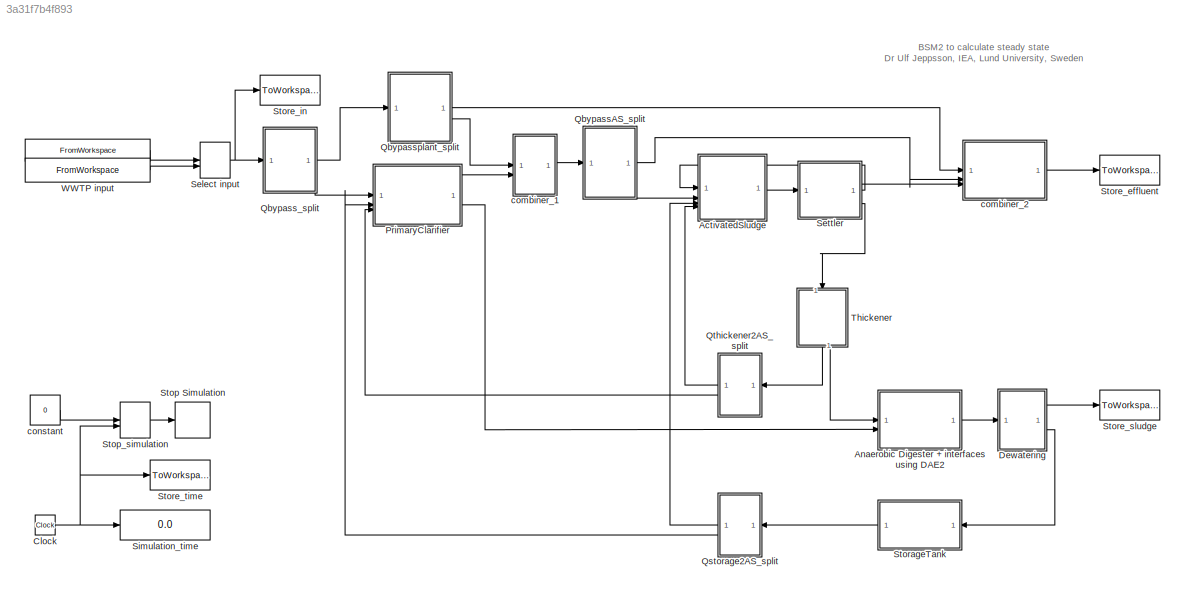
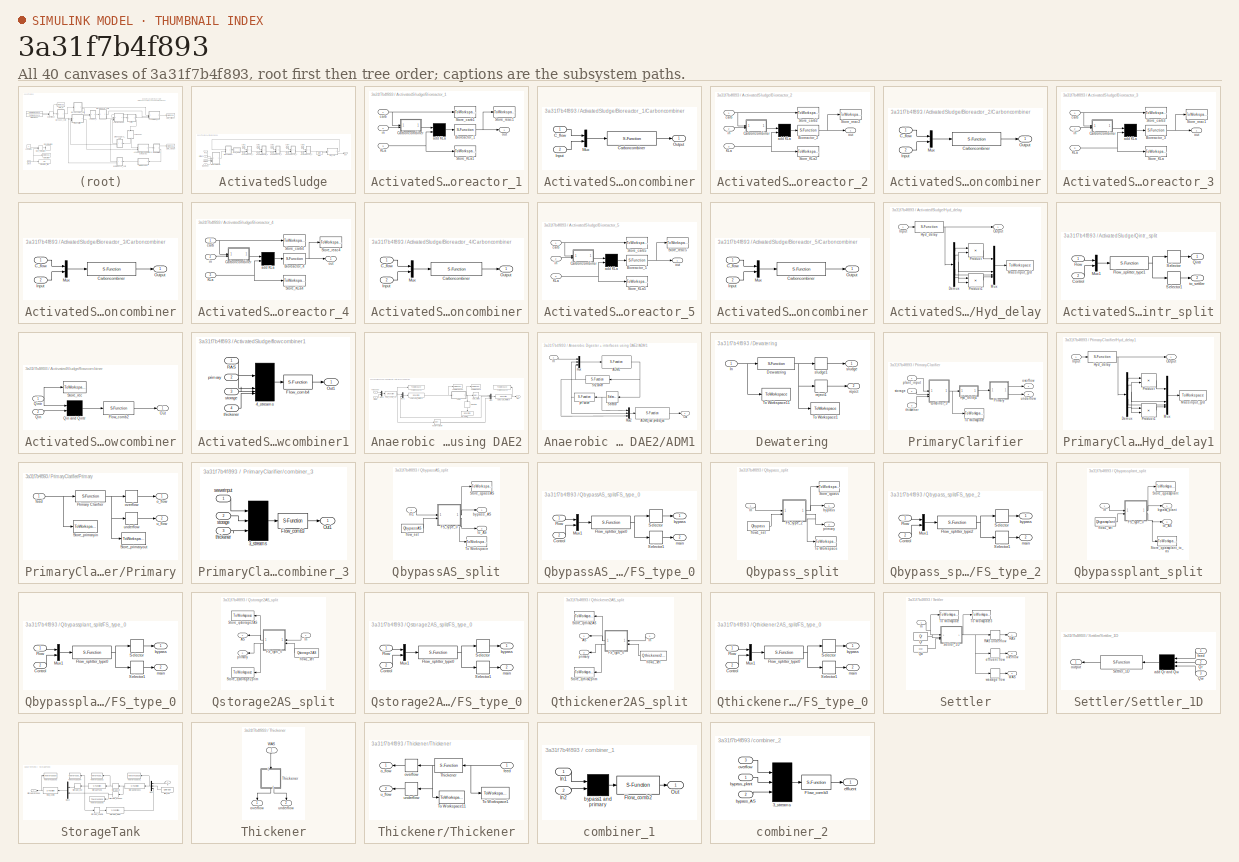
[diagram: thumbnail index - all 40 canvases of the model, root first then tree order]
MODEL slx_3a31f7b4f893
KIND model
CONFIG AbsTol = 1e-8
CONFIG EnableMultiTasking = off
CONFIG FixedStep = 0.01
CONFIG MaxStep = auto
CONFIG MinStep = auto
CONFIG RelTol = 1e-5
CONFIG SampleTimeConstraint = Unconstrained
CONFIG SolverName = ode15s
CONFIG StartTime = 0.0
CONFIG StopTime = 50
BLOCK [FromWorkspace]  
  OutputAfterFinalValue = Holding final value
  SampleTime = -1
  VariableName = CONSTINFLUENT_BSM2
  ZeroCross = off
BLOCK [Constant]  constant
  Value = 0
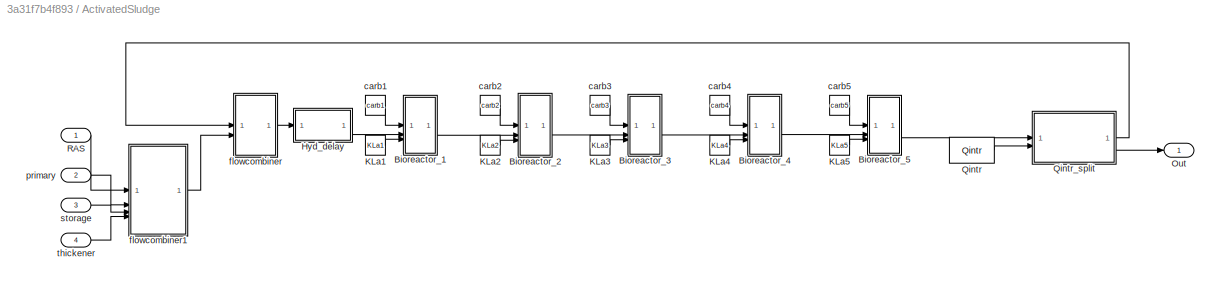
BLOCK [SubSystem] ActivatedSludge
BLOCK [SubSystem] ActivatedSludge/Bioreactor_1
BLOCK [S-Function] ActivatedSludge/Bioreactor_1/Bioreactor_1
  EnableBusSupport = off
  FunctionName = asm1_bsm2
  Parameters = XINIT1,PAR1,VOL1,SOSAT1,TEMPMODEL,ACTIVATE
  SFcnIsStateOwnerBlock = off
  SFunctionDeploymentMode = off
BLOCK [SubSystem] ActivatedSludge/Bioreactor_1/Carboncombiner
BLOCK [Inport] ActivatedSludge/Bioreactor_1/Carboncombiner/C_flow
BLOCK [S-Function] ActivatedSludge/Bioreactor_1/Carboncombiner/Carboncombiner
  EnableBusSupport = off
  FunctionName = carboncombiner_bsm2
  Parameters = CARBONSOURCECONC
  SFcnIsStateOwnerBlock = off
  SFunctionDeploymentMode = off
BLOCK [Inport] ActivatedSludge/Bioreactor_1/Carboncombiner/Input
  Port = 2
BLOCK [Mux] ActivatedSludge/Bioreactor_1/Carboncombiner/Mux
  DisplayOption = bar
  Inputs = 2
BLOCK [Outport] ActivatedSludge/Bioreactor_1/Carboncombiner/Output
BLOCK [Inport] ActivatedSludge/Bioreactor_1/KLa
  Port = 3
BLOCK [ToWorkspace] ActivatedSludge/Bioreactor_1/Store_KLa1
  MaxDataPoints = inf
  SampleTime = -1
  VariableName = kla1in
BLOCK [ToWorkspace] ActivatedSludge/Bioreactor_1/Store_carb1
  MaxDataPoints = inf
  SampleTime = -1
  VariableName = carbon1in
BLOCK [ToWorkspace] ActivatedSludge/Bioreactor_1/Store_reac1
  MaxDataPoints = inf
  SampleTime = -1
  VariableName = reac1
BLOCK [Mux] ActivatedSludge/Bioreactor_1/add KLa
  Inputs = 2
BLOCK [Inport] ActivatedSludge/Bioreactor_1/carb
BLOCK [Inport] ActivatedSludge/Bioreactor_1/in
  Port = 2
BLOCK [Outport] ActivatedSludge/Bioreactor_1/out
BLOCK [SubSystem] ActivatedSludge/Bioreactor_2
BLOCK [S-Function] ActivatedSludge/Bioreactor_2/Bioreactor_2
  EnableBusSupport = off
  FunctionName = asm1_bsm2
  Parameters = XINIT2,PAR2,VOL2,SOSAT2,TEMPMODEL,ACTIVATE
  SFcnIsStateOwnerBlock = off
  SFunctionDeploymentMode = off
BLOCK [SubSystem] ActivatedSludge/Bioreactor_2/Carboncombiner
BLOCK [Inport] ActivatedSludge/Bioreactor_2/Carboncombiner/C_flow
BLOCK [S-Function] ActivatedSludge/Bioreactor_2/Carboncombiner/Carboncombiner
  EnableBusSupport = off
  FunctionName = carboncombiner_bsm2
  Parameters = CARBONSOURCECONC
  SFcnIsStateOwnerBlock = off
  SFunctionDeploymentMode = off
BLOCK [Inport] ActivatedSludge/Bioreactor_2/Carboncombiner/Input
  Port = 2
BLOCK [Mux] ActivatedSludge/Bioreactor_2/Carboncombiner/Mux
  DisplayOption = bar
  Inputs = 2
BLOCK [Outport] ActivatedSludge/Bioreactor_2/Carboncombiner/Output
BLOCK [Inport] ActivatedSludge/Bioreactor_2/KLa
  Port = 3
BLOCK [ToWorkspace] ActivatedSludge/Bioreactor_2/Store_KLa2
  MaxDataPoints = inf
  SampleTime = -1
  VariableName = kla2in
BLOCK [ToWorkspace] ActivatedSludge/Bioreactor_2/Store_carb2
  MaxDataPoints = inf
  SampleTime = -1
  VariableName = carbon2in
BLOCK [ToWorkspace] ActivatedSludge/Bioreactor_2/Store_reac2
  MaxDataPoints = inf
  SampleTime = -1
  VariableName = reac2
BLOCK [Mux] ActivatedSludge/Bioreactor_2/add KLa
  Inputs = 2
BLOCK [Inport] ActivatedSludge/Bioreactor_2/carb
BLOCK [Inport] ActivatedSludge/Bioreactor_2/in
  Port = 2
BLOCK [Outport] ActivatedSludge/Bioreactor_2/out
BLOCK [SubSystem] ActivatedSludge/Bioreactor_3
BLOCK [S-Function] ActivatedSludge/Bioreactor_3/Bioreactor_3
  EnableBusSupport = off
  FunctionName = asm1_bsm2
  Parameters = XINIT3,PAR3,VOL3,SOSAT3,TEMPMODEL,ACTIVATE
  SFcnIsStateOwnerBlock = off
  SFunctionDeploymentMode = off
BLOCK [SubSystem] ActivatedSludge/Bioreactor_3/Carboncombiner
BLOCK [Inport] ActivatedSludge/Bioreactor_3/Carboncombiner/C_flow
BLOCK [S-Function] ActivatedSludge/Bioreactor_3/Carboncombiner/Carboncombiner
  EnableBusSupport = off
  FunctionName = carboncombiner_bsm2
  Parameters = CARBONSOURCECONC
  SFcnIsStateOwnerBlock = off
  SFunctionDeploymentMode = off
BLOCK [Inport] ActivatedSludge/Bioreactor_3/Carboncombiner/Input
  Port = 2
BLOCK [Mux] ActivatedSludge/Bioreactor_3/Carboncombiner/Mux
  DisplayOption = bar
  Inputs = 2
BLOCK [Outport] ActivatedSludge/Bioreactor_3/Carboncombiner/Output
BLOCK [Inport] ActivatedSludge/Bioreactor_3/KLa
  Port = 3
BLOCK [ToWorkspace] ActivatedSludge/Bioreactor_3/Store_KLa
  MaxDataPoints = inf
  SampleTime = -1
  VariableName = kla3in
BLOCK [ToWorkspace] ActivatedSludge/Bioreactor_3/Store_carb3
  MaxDataPoints = inf
  SampleTime = -1
  VariableName = carbon3in
BLOCK [ToWorkspace] ActivatedSludge/Bioreactor_3/Store_reac1
  MaxDataPoints = inf
  SampleTime = -1
  VariableName = reac3
BLOCK [Mux] ActivatedSludge/Bioreactor_3/add KLa
  Inputs = 2
BLOCK [Inport] ActivatedSludge/Bioreactor_3/carb
BLOCK [Inport] ActivatedSludge/Bioreactor_3/in
  Port = 2
BLOCK [Outport] ActivatedSludge/Bioreactor_3/out
BLOCK [SubSystem] ActivatedSludge/Bioreactor_4
BLOCK [S-Function] ActivatedSludge/Bioreactor_4/Bioreactor_4
  EnableBusSupport = off
  FunctionName = asm1_bsm2
  Parameters = XINIT4,PAR4,VOL4,SOSAT4,TEMPMODEL,ACTIVATE
  SFcnIsStateOwnerBlock = off
  SFunctionDeploymentMode = off
BLOCK [SubSystem] ActivatedSludge/Bioreactor_4/Carboncombiner
BLOCK [Inport] ActivatedSludge/Bioreactor_4/Carboncombiner/C_flow
BLOCK [S-Function] ActivatedSludge/Bioreactor_4/Carboncombiner/Carboncombiner
  EnableBusSupport = off
  FunctionName = carboncombiner_bsm2
  Parameters = CARBONSOURCECONC
  SFcnIsStateOwnerBlock = off
  SFunctionDeploymentMode = off
BLOCK [Inport] ActivatedSludge/Bioreactor_4/Carboncombiner/Input
  Port = 2
BLOCK [Mux] ActivatedSludge/Bioreactor_4/Carboncombiner/Mux
  DisplayOption = bar
  Inputs = 2
BLOCK [Outport] ActivatedSludge/Bioreactor_4/Carboncombiner/Output
BLOCK [Inport] ActivatedSludge/Bioreactor_4/KLa
  Port = 3
BLOCK [ToWorkspace] ActivatedSludge/Bioreactor_4/Store_KLa4
  MaxDataPoints = inf
  SampleTime = -1
  VariableName = kla4in
BLOCK [ToWorkspace] ActivatedSludge/Bioreactor_4/Store_carb4
  MaxDataPoints = inf
  SampleTime = -1
  VariableName = carbon4in
BLOCK [ToWorkspace] ActivatedSludge/Bioreactor_4/Store_reac4
  MaxDataPoints = inf
  SampleTime = -1
  VariableName = reac4
BLOCK [Mux] ActivatedSludge/Bioreactor_4/add KLa
  Inputs = 2
BLOCK [Inport] ActivatedSludge/Bioreactor_4/carb
BLOCK [Inport] ActivatedSludge/Bioreactor_4/in
  Port = 2
BLOCK [Outport] ActivatedSludge/Bioreactor_4/out
BLOCK [SubSystem] ActivatedSludge/Bioreactor_5
BLOCK [S-Function] ActivatedSludge/Bioreactor_5/Bioreactor_5
  EnableBusSupport = off
  FunctionName = asm1_bsm2
  Parameters = XINIT5,PAR5,VOL5,SOSAT5,TEMPMODEL,ACTIVATE
  SFcnIsStateOwnerBlock = off
  SFunctionDeploymentMode = off
BLOCK [SubSystem] ActivatedSludge/Bioreactor_5/Carboncombiner
BLOCK [Inport] ActivatedSludge/Bioreactor_5/Carboncombiner/C_flow
BLOCK [S-Function] ActivatedSludge/Bioreactor_5/Carboncombiner/Carboncombiner
  EnableBusSupport = off
  FunctionName = carboncombiner_bsm2
  Parameters = CARBONSOURCECONC
  SFcnIsStateOwnerBlock = off
  SFunctionDeploymentMode = off
BLOCK [Inport] ActivatedSludge/Bioreactor_5/Carboncombiner/Input
  Port = 2
BLOCK [Mux] ActivatedSludge/Bioreactor_5/Carboncombiner/Mux
  DisplayOption = bar
  Inputs = 2
BLOCK [Outport] ActivatedSludge/Bioreactor_5/Carboncombiner/Output
BLOCK [Inport] ActivatedSludge/Bioreactor_5/KLa
  Port = 3
BLOCK [ToWorkspace] ActivatedSludge/Bioreactor_5/Store_KLa5
  MaxDataPoints = inf
  SampleTime = -1
  VariableName = kla5in
BLOCK [ToWorkspace] ActivatedSludge/Bioreactor_5/Store_carb5
  MaxDataPoints = inf
  SampleTime = -1
  VariableName = carbon5in
BLOCK [ToWorkspace] ActivatedSludge/Bioreactor_5/Store_reac5
  MaxDataPoints = inf
  SampleTime = -1
  VariableName = reac5
BLOCK [Mux] ActivatedSludge/Bioreactor_5/add KLa
  Inputs = 2
BLOCK [Inport] ActivatedSludge/Bioreactor_5/carb
BLOCK [Inport] ActivatedSludge/Bioreactor_5/in
  Port = 2
BLOCK [Outport] ActivatedSludge/Bioreactor_5/out
BLOCK [SubSystem] ActivatedSludge/Hyd_delay
BLOCK [Demux] ActivatedSludge/Hyd_delay/Demux
  DisplayOption = none
  Outputs = [14,1,1,5]
BLOCK [S-Function] ActivatedSludge/Hyd_delay/Hyd_delay
  EnableBusSupport = off
  FunctionName = hyddelayv3_bsm2
  Parameters = XINITDELAY,PAR1,T
  SFcnIsStateOwnerBlock = off
  SFunctionDeploymentMode = off
BLOCK [Inport] ActivatedSludge/Hyd_delay/Input
BLOCK [ToWorkspace] ActivatedSludge/Hyd_delay/Massinput_g//d
  MaxDataPoints = inf
  SampleTime = -1
  VariableName = ASinput
BLOCK [Mux] ActivatedSludge/Hyd_delay/Mux
  DisplayOption = bar
BLOCK [Outport] ActivatedSludge/Hyd_delay/Output
BLOCK [Product] ActivatedSludge/Hyd_delay/Product
  OutDataTypeStr = Inherit: Same as first input
  SaturateOnIntegerOverflow = on
BLOCK [Product] ActivatedSludge/Hyd_delay/Product1
  OutDataTypeStr = Inherit: Same as first input
  SaturateOnIntegerOverflow = on
BLOCK [Constant] ActivatedSludge/KLa1
  Value = KLa1
BLOCK [Constant] ActivatedSludge/KLa2
  Value = KLa2
BLOCK [Constant] ActivatedSludge/KLa3
  Value = KLa3
BLOCK [Constant] ActivatedSludge/KLa4
  Value = KLa4
BLOCK [Constant] ActivatedSludge/KLa5
  Value = KLa5
BLOCK [Outport] ActivatedSludge/Out
BLOCK [Constant] ActivatedSludge/Qintr
  Value = Qintr
BLOCK [SubSystem] ActivatedSludge/Qintr_split
BLOCK [Inport] ActivatedSludge/Qintr_split/Control
  Port = 2
BLOCK [Inport] ActivatedSludge/Qintr_split/Flow
BLOCK [S-Function] ActivatedSludge/Qintr_split/Flow_splitter_type1
  EnableBusSupport = off
  FunctionName = flowsplitter_bsm2
  Parameters = Qintrtype
  SFcnIsStateOwnerBlock = off
  SFunctionDeploymentMode = off
BLOCK [Mux] ActivatedSludge/Qintr_split/Mux1
  DisplayOption = bar
  Inputs = 2
BLOCK [Outport] ActivatedSludge/Qintr_split/Qintr
BLOCK [Selector] ActivatedSludge/Qintr_split/Selector
  IndexOptions = Index vector (dialog)
  Indices = [1:21]
  InputPortWidth = 42
  OutputSizes = 1
BLOCK [Selector] ActivatedSludge/Qintr_split/Selector1
  IndexOptions = Index vector (dialog)
  Indices = [22:42]
  InputPortWidth = 42
  OutputSizes = 1
BLOCK [Outport] ActivatedSludge/Qintr_split/to_settler
  Port = 2
BLOCK [Inport] ActivatedSludge/RAS
BLOCK [Constant] ActivatedSludge/carb1
  NameLocation = top
  Value = carb1
BLOCK [Constant] ActivatedSludge/carb2
  NameLocation = top
  Value = carb2
BLOCK [Constant] ActivatedSludge/carb3
  NameLocation = top
  Value = carb3
BLOCK [Constant] ActivatedSludge/carb4
  NameLocation = top
  Value = carb4
BLOCK [Constant] ActivatedSludge/carb5
  NameLocation = top
  Value = carb5
BLOCK [SubSystem] ActivatedSludge/flowcombiner
BLOCK [S-Function] ActivatedSludge/flowcombiner/Flow_comb2
  EnableBusSupport = off
  FunctionName = combiner_bsm2
  SFcnIsStateOwnerBlock = off
  SFunctionDeploymentMode = off
BLOCK [Outport] ActivatedSludge/flowcombiner/Out
BLOCK [Inport] ActivatedSludge/flowcombiner/Qin
  Port = 2
BLOCK [Mux] ActivatedSludge/flowcombiner/Qin and Qintr
  Inputs = 2
BLOCK [Inport] ActivatedSludge/flowcombiner/Qintr
BLOCK [ToWorkspace] ActivatedSludge/flowcombiner/Store_rec
  MaxDataPoints = inf
  VariableName = rec
BLOCK [SubSystem] ActivatedSludge/flowcombiner1
BLOCK [Mux] ActivatedSludge/flowcombiner1/4_streams
BLOCK [S-Function] ActivatedSludge/flowcombiner1/Flow_comb4
  EnableBusSupport = off
  FunctionName = combiner4_bsm2
  SFcnIsStateOwnerBlock = off
  SFunctionDeploymentMode = off
BLOCK [Outport] ActivatedSludge/flowcombiner1/Out1
BLOCK [Inport] ActivatedSludge/flowcombiner1/RAS
BLOCK [Inport] ActivatedSludge/flowcombiner1/primary
  Port = 2
BLOCK [Inport] ActivatedSludge/flowcombiner1/storage
  Port = 3
BLOCK [Inport] ActivatedSludge/flowcombiner1/thickener
  Port = 4
BLOCK [Inport] ActivatedSludge/primary
  Port = 2
BLOCK [Inport] ActivatedSludge/storage
  Port = 3
BLOCK [Inport] ActivatedSludge/thickener
  Port = 4
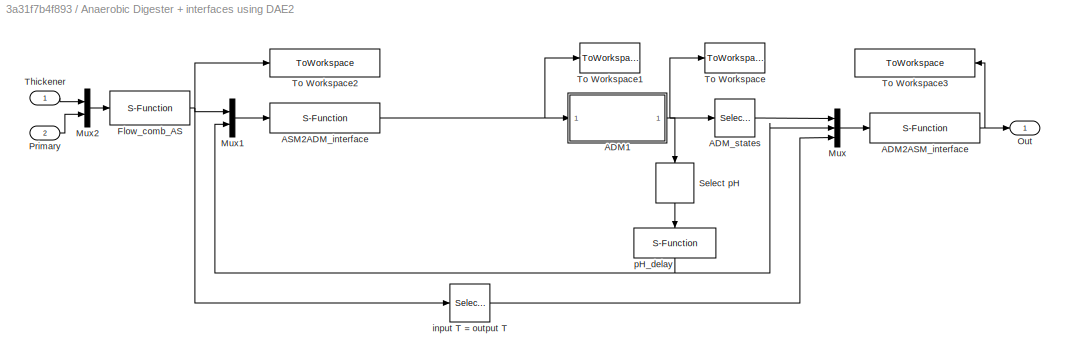
BLOCK [SubSystem] Anaerobic Digester + interfaces using DAE2
BLOCK [SubSystem] Anaerobic Digester + interfaces using DAE2/ADM1
BLOCK [S-Function] Anaerobic Digester + interfaces using DAE2/ADM1/ADM1
  EnableBusSupport = off
  FunctionName = adm1_DAE2_bsm2
  Parameters = DIGESTERINIT, DIGESTERPAR, DIM_D
  SFcnIsStateOwnerBlock = off
  SFunctionDeploymentMode = off
BLOCK [S-Function] Anaerobic Digester + interfaces using DAE2/ADM1/ADM1_last pH&h2_out
  EnableBusSupport = off
  FunctionName = DAE2_combiner_bsm2
  SFcnIsStateOwnerBlock = off
  SFunctionDeploymentMode = off
BLOCK [Inport] Anaerobic Digester + interfaces using DAE2/ADM1/In
BLOCK [Mux] Anaerobic Digester + interfaces using DAE2/ADM1/Mux2
  DisplayOption = bar
  Inputs = 3
BLOCK [Outport] Anaerobic Digester + interfaces using DAE2/ADM1/Out
BLOCK [Selector] Anaerobic Digester + interfaces using DAE2/ADM1/Selector
  IndexOptions = Index vector (dialog)
  Indices = [1:51]
  InputPortWidth = 52
  OutputSizes = 1
BLOCK [S-Function] Anaerobic Digester + interfaces using DAE2/ADM1/Sh2 solver
  EnableBusSupport = off
  FunctionName = Sh2solv_bsm2
  Parameters = SH2SOLVINIT, DIGESTERPAR, DIM_D
  SFcnIsStateOwnerBlock = off
  SFunctionDeploymentMode = off
BLOCK [Mux] Anaerobic Digester + interfaces using DAE2/ADM1/mux
  DisplayOption = bar
  Inputs = 3
BLOCK [S-Function] Anaerobic Digester + interfaces using DAE2/ADM1/pH solver
  EnableBusSupport = off
  FunctionName = pHsolv_bsm2
  Parameters = PHSOLVINIT, DIGESTERPAR
  SFcnIsStateOwnerBlock = off
  SFunctionDeploymentMode = off
BLOCK [S-Function] Anaerobic Digester + interfaces using DAE2/ADM2ASM_interface
  EnableBusSupport = off
  FunctionName = adm2asm_v3_bsm2
  Parameters = INTERFACEPAR
  SFcnIsStateOwnerBlock = off
  SFunctionDeploymentMode = off
BLOCK [Selector] Anaerobic Digester + interfaces using DAE2/ADM_states
  IndexOptions = Index vector (dialog)
  Indices = [1:33]
  InputPortWidth = 51
  OutputSizes = 1
BLOCK [S-Function] Anaerobic Digester + interfaces using DAE2/ASM2ADM_interface
  EnableBusSupport = off
  FunctionName = asm2adm_v3_bsm2
  Parameters = INTERFACEPAR
  SFcnIsStateOwnerBlock = off
  SFunctionDeploymentMode = off
BLOCK [S-Function] Anaerobic Digester + interfaces using DAE2/Flow_comb_AS
  EnableBusSupport = off
  FunctionName = combiner_bsm2
  SFcnIsStateOwnerBlock = off
  SFunctionDeploymentMode = off
BLOCK [Mux] Anaerobic Digester + interfaces using DAE2/Mux
  DisplayOption = bar
  Inputs = 3
BLOCK [Mux] Anaerobic Digester + interfaces using DAE2/Mux1
  DisplayOption = bar
  Inputs = 2
BLOCK [Mux] Anaerobic Digester + interfaces using DAE2/Mux2
  DisplayOption = bar
  Inputs = 2
BLOCK [Outport] Anaerobic Digester + interfaces using DAE2/Out
BLOCK [Inport] Anaerobic Digester + interfaces using DAE2/Primary
  Port = 2
BLOCK [Selector] Anaerobic Digester + interfaces using DAE2/Select pH
  IndexOptions = Index vector (dialog)
  Indices = [34]
  InputPortWidth = 51
  NameLocation = left
  OutputSizes = 1
BLOCK [Inport] Anaerobic Digester + interfaces using DAE2/Thickener
BLOCK [ToWorkspace] Anaerobic Digester + interfaces using DAE2/To Workspace
  MaxDataPoints = inf
  VariableName = digesterout
BLOCK [ToWorkspace] Anaerobic Digester + interfaces using DAE2/To Workspace1
  MaxDataPoints = inf
  VariableName = digesterin
BLOCK [ToWorkspace] Anaerobic Digester + interfaces using DAE2/To Workspace2
  MaxDataPoints = inf
  VariableName = digesterinpreinterface
BLOCK [ToWorkspace] Anaerobic Digester + interfaces using DAE2/To Workspace3
  MaxDataPoints = inf
  VariableName = digesteroutpostinterface
BLOCK [Selector] Anaerobic Digester + interfaces using DAE2/input T = output T
  IndexOptions = Index vector (dialog)
  Indices = [16]
  InputPortWidth = 21
  OutputSizes = 1
BLOCK [S-Function] Anaerobic Digester + interfaces using DAE2/pH_delay
  EnableBusSupport = off
  FunctionName = pHdelay_bsm2
  NameLocation = left
  Parameters = PHINIT, PHTIMECONST
  SFcnIsStateOwnerBlock = off
  SFunctionDeploymentMode = off
BLOCK [Clock] Clock
BLOCK [SubSystem] Dewatering
BLOCK [S-Function] Dewatering/Dewatering
  EnableBusSupport = off
  FunctionName = dewatering_bsm2
  Parameters = DEWATERINGPAR
  SFcnIsStateOwnerBlock = off
  SFunctionDeploymentMode = off
BLOCK [Inport] Dewatering/In
BLOCK [ToWorkspace] Dewatering/To Workspace1
  MaxDataPoints = inf
  VariableName = dewateringout
BLOCK [ToWorkspace] Dewatering/To Workspace11
  MaxDataPoints = inf
  VariableName = dewateringin
BLOCK [Outport] Dewatering/reject
  Port = 2
BLOCK [Selector] Dewatering/reject1
  IndexOptions = Index vector (dialog)
  Indices = [22:42]
  InputPortWidth = 42
  OutputSizes = 1
BLOCK [Outport] Dewatering/sludge
BLOCK [Selector] Dewatering/sludge1
  IndexOptions = Index vector (dialog)
  Indices = [1:21]
  InputPortWidth = 42
  OutputSizes = 1
BLOCK [SubSystem] PrimaryClarifier
BLOCK [SubSystem] PrimaryClarifier/Hyd_delay1
BLOCK [Demux] PrimaryClarifier/Hyd_delay1/Demux
  DisplayOption = none
  Outputs = [14,1,1,5]
BLOCK [S-Function] PrimaryClarifier/Hyd_delay1/Hyd_delay
  EnableBusSupport = off
  FunctionName = hyddelayv3_bsm2
  Parameters = XINITDELAYPRIMARY,PAR1,T
  SFcnIsStateOwnerBlock = off
  SFunctionDeploymentMode = off
BLOCK [Inport] PrimaryClarifier/Hyd_delay1/Input
BLOCK [ToWorkspace] PrimaryClarifier/Hyd_delay1/Massinput_g//d
  MaxDataPoints = inf
  SampleTime = -1
  VariableName = primaryinput
BLOCK [Mux] PrimaryClarifier/Hyd_delay1/Mux
  DisplayOption = bar
BLOCK [Outport] PrimaryClarifier/Hyd_delay1/Output
BLOCK [Product] PrimaryClarifier/Hyd_delay1/Product
  OutDataTypeStr = Inherit: Same as first input
  SaturateOnIntegerOverflow = on
BLOCK [Product] PrimaryClarifier/Hyd_delay1/Product1
  OutDataTypeStr = Inherit: Same as first input
  SaturateOnIntegerOverflow = on
BLOCK [SubSystem] PrimaryClarifier/Primary
BLOCK [S-Function] PrimaryClarifier/Primary/Primary Clarifier
  EnableBusSupport = off
  FunctionName = primclar_bsm2
  Parameters = XINIT_P,XVEKTOR_P,PAR_P,VOL_P,PAR1,TEMPMODEL
  SFcnIsStateOwnerBlock = off
  SFunctionDeploymentMode = off
BLOCK [ToWorkspace] PrimaryClarifier/Primary/Store_primaryin
  MaxDataPoints = inf
  VariableName = primaryin
BLOCK [ToWorkspace] PrimaryClarifier/Primary/Store_primaryout
  MaxDataPoints = inf
  VariableName = primaryout
BLOCK [Inport] PrimaryClarifier/Primary/feed
BLOCK [Outport] PrimaryClarifier/Primary/o_flow
BLOCK [Selector] PrimaryClarifier/Primary/overflow
  IndexOptions = Index vector (dialog)
  Indices = [1:21]
  InputPortWidth = 63
  NameLocation = top
  OutputSizes = 1
BLOCK [Outport] PrimaryClarifier/Primary/u_flow
  Port = 2
BLOCK [Selector] PrimaryClarifier/Primary/underflow
  IndexOptions = Index vector (dialog)
  Indices = [22:42]
  InputPortWidth = 63
  OutputSizes = 1
BLOCK [ToWorkspace] PrimaryClarifier/To Workspace
  MaxDataPoints = inf
  VariableName = prim_in
BLOCK [SubSystem] PrimaryClarifier/combiner_3
BLOCK [Mux] PrimaryClarifier/combiner_3/3_streams
  Inputs = 3
BLOCK [S-Function] PrimaryClarifier/combiner_3/Flow_comb3
  EnableBusSupport = off
  FunctionName = combiner3_bsm2
  SFcnIsStateOwnerBlock = off
  SFunctionDeploymentMode = off
BLOCK [Outport] PrimaryClarifier/combiner_3/Out1
BLOCK [Inport] PrimaryClarifier/combiner_3/sewerinput
BLOCK [Inport] PrimaryClarifier/combiner_3/storage
  Port = 2
BLOCK [Inport] PrimaryClarifier/combiner_3/thickener
  Port = 3
BLOCK [Outport] PrimaryClarifier/overflow
  NameLocation = top
BLOCK [Inport] PrimaryClarifier/plant_input
BLOCK [Inport] PrimaryClarifier/storage
  Port = 2
BLOCK [Inport] PrimaryClarifier/thickener
  Port = 3
BLOCK [Outport] PrimaryClarifier/underflow
  Port = 2
BLOCK [SubSystem] QbypassAS_split
BLOCK [SubSystem] QbypassAS_split/FS_type_0
BLOCK [Inport] QbypassAS_split/FS_type_0/Control
  Port = 2
BLOCK [Inport] QbypassAS_split/FS_type_0/Flow
BLOCK [S-Function] QbypassAS_split/FS_type_0/Flow_splitter_type0
  EnableBusSupport = off
  FunctionName = flowsplitter_bsm2
  Parameters = QbypassAStype
  SFcnIsStateOwnerBlock = off
  SFunctionDeploymentMode = off
BLOCK [Mux] QbypassAS_split/FS_type_0/Mux1
  DisplayOption = bar
  Inputs = 2
BLOCK [Selector] QbypassAS_split/FS_type_0/Selector
  IndexOptions = Index vector (dialog)
  Indices = [1:21]
  InputPortWidth = 42
  OutputSizes = 1
BLOCK [Selector] QbypassAS_split/FS_type_0/Selector1
  IndexOptions = Index vector (dialog)
  Indices = [22:42]
  InputPortWidth = 42
  OutputSizes = 1
BLOCK [Outport] QbypassAS_split/FS_type_0/bypass
BLOCK [Outport] QbypassAS_split/FS_type_0/main
  Port = 2
BLOCK [Inport] QbypassAS_split/In1
BLOCK [ToWorkspace] QbypassAS_split/Store_qpassAS
  MaxDataPoints = inf
  VariableName = qpassAS
BLOCK [ToWorkspace] QbypassAS_split/To Workspace
  MaxDataPoints = inf
  VariableName = to_as
BLOCK [Outport] QbypassAS_split/bypass_AS
BLOCK [Constant] QbypassAS_split/flow_set
  Value = QbypassAS
BLOCK [Outport] QbypassAS_split/to_AS
  Port = 2
BLOCK [SubSystem] Qbypass_split
BLOCK [SubSystem] Qbypass_split/FS_type_2
BLOCK [Inport] Qbypass_split/FS_type_2/Control
  Port = 2
BLOCK [Inport] Qbypass_split/FS_type_2/Flow
BLOCK [S-Function] Qbypass_split/FS_type_2/Flow_splitter_type2
  EnableBusSupport = off
  FunctionName = flowsplitter_bsm2
  Parameters = Qbypasstype
  SFcnIsStateOwnerBlock = off
  SFunctionDeploymentMode = off
BLOCK [Mux] Qbypass_split/FS_type_2/Mux1
  DisplayOption = bar
  Inputs = 2
BLOCK [Selector] Qbypass_split/FS_type_2/Selector
  IndexOptions = Index vector (dialog)
  Indices = [1:21]
  InputPortWidth = 42
  OutputSizes = 1
BLOCK [Selector] Qbypass_split/FS_type_2/Selector1
  IndexOptions = Index vector (dialog)
  Indices = [22:42]
  InputPortWidth = 42
  OutputSizes = 1
BLOCK [Outport] Qbypass_split/FS_type_2/bypass
BLOCK [Outport] Qbypass_split/FS_type_2/main
  Port = 2
BLOCK [Inport] Qbypass_split/In
BLOCK [ToWorkspace] Qbypass_split/Store_qpass
  MaxDataPoints = inf
  VariableName = qpass
BLOCK [ToWorkspace] Qbypass_split/To Workspace
  MaxDataPoints = inf
  VariableName = to_primary
BLOCK [Outport] Qbypass_split/bypass
BLOCK [Constant] Qbypass_split/flow1_set
  Value = Qbypass
BLOCK [Outport] Qbypass_split/primary
  Port = 2
BLOCK [SubSystem] Qbypassplant_split
BLOCK [SubSystem] Qbypassplant_split/FS_type_0
BLOCK [Inport] Qbypassplant_split/FS_type_0/Control
  Port = 2
BLOCK [Inport] Qbypassplant_split/FS_type_0/Flow
BLOCK [S-Function] Qbypassplant_split/FS_type_0/Flow_splitter_type0
  EnableBusSupport = off
  FunctionName = flowsplitter_bsm2
  Parameters = Qbypassplanttype
  SFcnIsStateOwnerBlock = off
  SFunctionDeploymentMode = off
BLOCK [Mux] Qbypassplant_split/FS_type_0/Mux1
  DisplayOption = bar
  Inputs = 2
BLOCK [Selector] Qbypassplant_split/FS_type_0/Selector
  IndexOptions = Index vector (dialog)
  Indices = [1:21]
  InputPortWidth = 42
  OutputSizes = 1
BLOCK [Selector] Qbypassplant_split/FS_type_0/Selector1
  IndexOptions = Index vector (dialog)
  Indices = [22:42]
  InputPortWidth = 42
  OutputSizes = 1
BLOCK [Outport] Qbypassplant_split/FS_type_0/bypass
BLOCK [Outport] Qbypassplant_split/FS_type_0/main
  Port = 2
BLOCK [Inport] Qbypassplant_split/In
BLOCK [ToWorkspace] Qbypassplant_split/Store_qpassplant
  MaxDataPoints = inf
  VariableName = qpassplant
BLOCK [ToWorkspace] Qbypassplant_split/Store_qpassplant_to_as
  MaxDataPoints = inf
  VariableName = qpassplant_to_as
BLOCK [Outport] Qbypassplant_split/bypass_plant
BLOCK [Constant] Qbypassplant_split/flow1_set
  Value = Qbypassplant
BLOCK [Outport] Qbypassplant_split/to_AS
  Port = 2
BLOCK [SubSystem] Qstorage2AS_split
BLOCK [Outport] Qstorage2AS_split/AS
BLOCK [SubSystem] Qstorage2AS_split/FS_type_0
BLOCK [Inport] Qstorage2AS_split/FS_type_0/Control
  Port = 2
BLOCK [Inport] Qstorage2AS_split/FS_type_0/Flow
BLOCK [S-Function] Qstorage2AS_split/FS_type_0/Flow_splitter_type0
  EnableBusSupport = off
  FunctionName = flowsplitter_bsm2
  Parameters = Qstorage2AStype
  SFcnIsStateOwnerBlock = off
  SFunctionDeploymentMode = off
BLOCK [Mux] Qstorage2AS_split/FS_type_0/Mux1
  DisplayOption = bar
  Inputs = 2
BLOCK [Selector] Qstorage2AS_split/FS_type_0/Selector
  IndexOptions = Index vector (dialog)
  Indices = [1:21]
  InputPortWidth = 42
  OutputSizes = 1
BLOCK [Selector] Qstorage2AS_split/FS_type_0/Selector1
  IndexOptions = Index vector (dialog)
  Indices = [22:42]
  InputPortWidth = 42
  OutputSizes = 1
BLOCK [Outport] Qstorage2AS_split/FS_type_0/bypass
BLOCK [Outport] Qstorage2AS_split/FS_type_0/main
  Port = 2
BLOCK [Inport] Qstorage2AS_split/In
BLOCK [ToWorkspace] Qstorage2AS_split/Store_qstorage2AS
  MaxDataPoints = inf
  VariableName = qstorage2AS
BLOCK [ToWorkspace] Qstorage2AS_split/Store_qstorage2prim
  MaxDataPoints = inf
  VariableName = qstorage2prim
BLOCK [Constant] Qstorage2AS_split/flow1_set
  Value = Qstorage2AS
BLOCK [Outport] Qstorage2AS_split/primary
  Port = 2
BLOCK [SubSystem] Qthickener2AS_split
BLOCK [Outport] Qthickener2AS_split/AS
BLOCK [SubSystem] Qthickener2AS_split/FS_type_0
BLOCK [Inport] Qthickener2AS_split/FS_type_0/Control
  Port = 2
BLOCK [Inport] Qthickener2AS_split/FS_type_0/Flow
BLOCK [S-Function] Qthickener2AS_split/FS_type_0/Flow_splitter_type0
  EnableBusSupport = off
  FunctionName = flowsplitter_bsm2
  Parameters = Qthickener2AStype
  SFcnIsStateOwnerBlock = off
  SFunctionDeploymentMode = off
BLOCK [Mux] Qthickener2AS_split/FS_type_0/Mux1
  DisplayOption = bar
  Inputs = 2
BLOCK [Selector] Qthickener2AS_split/FS_type_0/Selector
  IndexOptions = Index vector (dialog)
  Indices = [1:21]
  InputPortWidth = 42
  OutputSizes = 1
BLOCK [Selector] Qthickener2AS_split/FS_type_0/Selector1
  IndexOptions = Index vector (dialog)
  Indices = [22:42]
  InputPortWidth = 42
  OutputSizes = 1
BLOCK [Outport] Qthickener2AS_split/FS_type_0/bypass
BLOCK [Outport] Qthickener2AS_split/FS_type_0/main
  Port = 2
BLOCK [Inport] Qthickener2AS_split/In
BLOCK [ToWorkspace] Qthickener2AS_split/Store_qthick2AS
  MaxDataPoints = inf
  VariableName = qthick2AS
BLOCK [ToWorkspace] Qthickener2AS_split/Store_qthick2prim
  MaxDataPoints = inf
  VariableName = qthick2prim
BLOCK [Constant] Qthickener2AS_split/flow1_set
  Value = Qthickener2AS
BLOCK [Outport] Qthickener2AS_split/primary
  Port = 2
BLOCK [ManualSwitch] Select input
  CurrentSetting = 0
BLOCK [SubSystem] Settler
BLOCK [Inport] Settler/In
BLOCK [Constant] Settler/Qr
  Value = Qr
BLOCK [Constant] Settler/Qw
  Value = Qw
BLOCK [Outport] Settler/RAS
BLOCK [Selector] Settler/RAS underflow
  IndexOptions = Index vector (dialog)
  Indices = [1:21]
  InputPortWidth = 166
  OutputSizes = 1
BLOCK [SubSystem] Settler/Settler_1D
BLOCK [Inport] Settler/Settler_1D/Qr
  Port = 2
BLOCK [Inport] Settler/Settler_1D/Qw
  Port = 3
BLOCK [S-Function] Settler/Settler_1D/Settler_1D
  EnableBusSupport = off
  FunctionName = settler1dv5_bsm2
  Parameters = SETTLERINIT,SETTLERPAR,DIM,LAYER,MODELTYPE,TEMPMODEL,ACTIVATE
  SFcnIsStateOwnerBlock = off
  SFunctionDeploymentMode = off
BLOCK [Mux] Settler/Settler_1D/add Qr and Qw
  Inputs = 3
BLOCK [Inport] Settler/Settler_1D/feed
BLOCK [Outport] Settler/Settler_1D/output
BLOCK [ToWorkspace] Settler/To Workspace
  MaxDataPoints = inf
  VariableName = feed
BLOCK [ToWorkspace] Settler/To Workspace3
  MaxDataPoints = inf
  VariableName = settler
BLOCK [Outport] Settler/WAS
  Port = 3
BLOCK [Selector] Settler/effluent flow
  IndexOptions = Index vector (dialog)
  Indices = [23:43]
  InputPortWidth = 166
  OutputSizes = 1
BLOCK [Outport] Settler/overflow
  Port = 2
BLOCK [Selector] Settler/wastage flow
  IndexOptions = Index vector (dialog)
  Indices = [1:14,22,16:21]
  InputPortWidth = 166
  OutputSizes = 1
BLOCK [Display] Simulation_time
  Decimation = 1
BLOCK [Stop] Stop Simulation
BLOCK [ManualSwitch] Stop_simulation
BLOCK [SubSystem] StorageTank
BLOCK [S-Function] StorageTank/Flow_comb
  EnableBusSupport = off
  FunctionName = combiner_bsm2
  SFcnIsStateOwnerBlock = off
  SFunctionDeploymentMode = off
BLOCK [Inport] StorageTank/In
BLOCK [Mux] StorageTank/Mux1
  DisplayOption = bar
  Inputs = 3
BLOCK [Mux] StorageTank/Mux2
  DisplayOption = bar
  Inputs = 2
BLOCK [Outport] StorageTank/Storage+bypass
BLOCK [S-Function] StorageTank/StorageBypass
  EnableBusSupport = off
  FunctionName = storagebypass_bsm2
  Parameters = VOL_S
  SFcnIsStateOwnerBlock = off
  SFunctionDeploymentMode = off
BLOCK [S-Function] StorageTank/StorageTank
  EnableBusSupport = off
  FunctionName = storage_bsm2
  Parameters = XINITSTORAGE,VOL_S,TEMPMODEL,ACTIVATE
  SFcnIsStateOwnerBlock = off
  SFunctionDeploymentMode = off
BLOCK [Selector] StorageTank/Storage_bypass
  IndexOptions = Index vector (dialog)
  Indices = [23:43]
  InputPortWidth = 43
  OutputSizes = 1
BLOCK [Selector] StorageTank/Storage_in
  IndexOptions = Index vector (dialog)
  Indices = [1:22]
  InputPortWidth = 43
  OutputSizes = 1
BLOCK [Selector] StorageTank/Storage_out
  IndexOptions = Index vector (dialog)
  Indices = [1:21]
  InputPortWidth = 22
  OutputSizes = 1
BLOCK [Selector] StorageTank/Storage_volume
  IndexOptions = Index vector (dialog)
  Indices = [22]
  InputPortWidth = 22
  OutputSizes = 1
BLOCK [ToWorkspace] StorageTank/To Workspace1
  MaxDataPoints = inf
  VariableName = storagetotin
BLOCK [ToWorkspace] StorageTank/To Workspace2
  MaxDataPoints = inf
  VariableName = storagein
BLOCK [ToWorkspace] StorageTank/To Workspace3
  MaxDataPoints = inf
  VariableName = storagetotout
BLOCK [ToWorkspace] StorageTank/To Workspace4
  MaxDataPoints = inf
  VariableName = storageout
BLOCK [ToWorkspace] StorageTank/To Workspace5
  MaxDataPoints = inf
  VariableName = storagebypass
BLOCK [Constant] StorageTank/flow_set
  Value = Qstorage
BLOCK [S-Function] StorageTank/storage_delay
  EnableBusSupport = off
  FunctionName = storagedelay_bsm2
  Parameters = VOL_INIT_S,TIMEDELAY_S
  SFcnIsStateOwnerBlock = off
  SFunctionDeploymentMode = off
BLOCK [ToWorkspace] Store_effluent
  MaxDataPoints = inf
  VariableName = effluent
BLOCK [ToWorkspace] Store_in
  MaxDataPoints = inf
  VariableName = in
BLOCK [ToWorkspace] Store_sludge
  MaxDataPoints = inf
  VariableName = sludge
BLOCK [ToWorkspace] Store_time
  MaxDataPoints = inf
  VariableName = time
BLOCK [SubSystem] Thickener
  NameLocation = right
BLOCK [SubSystem] Thickener/Thickener
  NameLocation = left
BLOCK [S-Function] Thickener/Thickener/Thickener
  EnableBusSupport = off
  FunctionName = thickener_bsm2
  Parameters = THICKENERPAR
  SFcnIsStateOwnerBlock = off
  SFunctionDeploymentMode = off
BLOCK [ToWorkspace] Thickener/Thickener/To Workspace1
  MaxDataPoints = inf
  VariableName = thickenerin
BLOCK [ToWorkspace] Thickener/Thickener/To Workspace11
  MaxDataPoints = inf
  VariableName = thickenerout
BLOCK [Inport] Thickener/Thickener/feed
BLOCK [Outport] Thickener/Thickener/o_flow
BLOCK [Selector] Thickener/Thickener/overflow
  IndexOptions = Index vector (dialog)
  Indices = [22:42]
  InputPortWidth = 42
  NameLocation = top
  OutputSizes = 1
BLOCK [Outport] Thickener/Thickener/u_flow
  Port = 2
BLOCK [Selector] Thickener/Thickener/underflow
  IndexOptions = Index vector (dialog)
  Indices = [1:21]
  InputPortWidth = 42
  OutputSizes = 1
BLOCK [Inport] Thickener/WAS
  NameLocation = right
BLOCK [Outport] Thickener/overflow
  NameLocation = left
BLOCK [Outport] Thickener/underflow
  NameLocation = right
  Port = 2
BLOCK [FromWorkspace] WWTP input
  Interpolate = off
  OutputAfterFinalValue = Holding final value
  SampleTime = -1
  VariableName = DYNINFLUENT_BSM2
  ZeroCross = off
BLOCK [SubSystem] combiner_1
BLOCK [S-Function] combiner_1/Flow_comb2
  EnableBusSupport = off
  FunctionName = combiner_bsm2
  SFcnIsStateOwnerBlock = off
  SFunctionDeploymentMode = off
BLOCK [Inport] combiner_1/In1
BLOCK [Inport] combiner_1/In2
  Port = 2
BLOCK [Outport] combiner_1/Out
BLOCK [Mux] combiner_1/bypass1 and primary
  Inputs = 2
BLOCK [SubSystem] combiner_2
BLOCK [Mux] combiner_2/3_streams
  Inputs = 3
BLOCK [S-Function] combiner_2/Flow_comb3
  EnableBusSupport = off
  FunctionName = combiner3_bsm2
  SFcnIsStateOwnerBlock = off
  SFunctionDeploymentMode = off
BLOCK [Inport] combiner_2/bypass_AS
  Port = 2
BLOCK [Inport] combiner_2/bypass_plant
BLOCK [Outport] combiner_2/effluent
BLOCK [Inport] combiner_2/overflow
  Port = 3
ANNOTATION (root): BSM2 to calculate steady state Dr Ulf Jeppsson, IEA, Lund University, Sweden
LINE  :1 -> Select input:1
LINE  constant:1 -> Stop_simulation:1
NET ActivatedSludge/Bioreactor_1/Bioreactor_1:1 -> ActivatedSludge/Bioreactor_1/Store_reac1:1, ActivatedSludge/Bioreactor_1/out:1
LINE ActivatedSludge/Bioreactor_1/Carboncombiner/C_flow:1 -> ActivatedSludge/Bioreactor_1/Carboncombiner/Mux:1
LINE ActivatedSludge/Bioreactor_1/Carboncombiner/Carboncombiner:1 -> ActivatedSludge/Bioreactor_1/Carboncombiner/Output:1
LINE ActivatedSludge/Bioreactor_1/Carboncombiner/Input:1 -> ActivatedSludge/Bioreactor_1/Carboncombiner/Mux:2
LINE ActivatedSludge/Bioreactor_1/Carboncombiner/Mux:1 -> ActivatedSludge/Bioreactor_1/Carboncombiner/Carboncombiner:1
LINE ActivatedSludge/Bioreactor_1/Carboncombiner:1 -> ActivatedSludge/Bioreactor_1/add KLa:1
NET ActivatedSludge/Bioreactor_1/KLa:1 -> ActivatedSludge/Bioreactor_1/Store_KLa1:1, ActivatedSludge/Bioreactor_1/add KLa:2
LINE ActivatedSludge/Bioreactor_1/add KLa:1 -> ActivatedSludge/Bioreactor_1/Bioreactor_1:1
NET ActivatedSludge/Bioreactor_1/carb:1 -> ActivatedSludge/Bioreactor_1/Carboncombiner:1, ActivatedSludge/Bioreactor_1/Store_carb1:1
LINE ActivatedSludge/Bioreactor_1/in:1 -> ActivatedSludge/Bioreactor_1/Carboncombiner:2
LINE ActivatedSludge/Bioreactor_1:1 -> ActivatedSludge/Bioreactor_2:2
NET ActivatedSludge/Bioreactor_2/Bioreactor_2:1 -> ActivatedSludge/Bioreactor_2/Store_reac2:1, ActivatedSludge/Bioreactor_2/out:1
LINE ActivatedSludge/Bioreactor_2/Carboncombiner/C_flow:1 -> ActivatedSludge/Bioreactor_2/Carboncombiner/Mux:1
LINE ActivatedSludge/Bioreactor_2/Carboncombiner/Carboncombiner:1 -> ActivatedSludge/Bioreactor_2/Carboncombiner/Output:1
LINE ActivatedSludge/Bioreactor_2/Carboncombiner/Input:1 -> ActivatedSludge/Bioreactor_2/Carboncombiner/Mux:2
LINE ActivatedSludge/Bioreactor_2/Carboncombiner/Mux:1 -> ActivatedSludge/Bioreactor_2/Carboncombiner/Carboncombiner:1
LINE ActivatedSludge/Bioreactor_2/Carboncombiner:1 -> ActivatedSludge/Bioreactor_2/add KLa:1
NET ActivatedSludge/Bioreactor_2/KLa:1 -> ActivatedSludge/Bioreactor_2/Store_KLa2:1, ActivatedSludge/Bioreactor_2/add KLa:2
LINE ActivatedSludge/Bioreactor_2/add KLa:1 -> ActivatedSludge/Bioreactor_2/Bioreactor_2:1
NET ActivatedSludge/Bioreactor_2/carb:1 -> ActivatedSludge/Bioreactor_2/Carboncombiner:1, ActivatedSludge/Bioreactor_2/Store_carb2:1
LINE ActivatedSludge/Bioreactor_2/in:1 -> ActivatedSludge/Bioreactor_2/Carboncombiner:2
LINE ActivatedSludge/Bioreactor_2:1 -> ActivatedSludge/Bioreactor_3:2
NET ActivatedSludge/Bioreactor_3/Bioreactor_3:1 -> ActivatedSludge/Bioreactor_3/Store_reac1:1, ActivatedSludge/Bioreactor_3/out:1
LINE ActivatedSludge/Bioreactor_3/Carboncombiner/C_flow:1 -> ActivatedSludge/Bioreactor_3/Carboncombiner/Mux:1
LINE ActivatedSludge/Bioreactor_3/Carboncombiner/Carboncombiner:1 -> ActivatedSludge/Bioreactor_3/Carboncombiner/Output:1
LINE ActivatedSludge/Bioreactor_3/Carboncombiner/Input:1 -> ActivatedSludge/Bioreactor_3/Carboncombiner/Mux:2
LINE ActivatedSludge/Bioreactor_3/Carboncombiner/Mux:1 -> ActivatedSludge/Bioreactor_3/Carboncombiner/Carboncombiner:1
LINE ActivatedSludge/Bioreactor_3/Carboncombiner:1 -> ActivatedSludge/Bioreactor_3/add KLa:1
NET ActivatedSludge/Bioreactor_3/KLa:1 -> ActivatedSludge/Bioreactor_3/Store_KLa:1, ActivatedSludge/Bioreactor_3/add KLa:2
LINE ActivatedSludge/Bioreactor_3/add KLa:1 -> ActivatedSludge/Bioreactor_3/Bioreactor_3:1
NET ActivatedSludge/Bioreactor_3/carb:1 -> ActivatedSludge/Bioreactor_3/Carboncombiner:1, ActivatedSludge/Bioreactor_3/Store_carb3:1
LINE ActivatedSludge/Bioreactor_3/in:1 -> ActivatedSludge/Bioreactor_3/Carboncombiner:2
LINE ActivatedSludge/Bioreactor_3:1 -> ActivatedSludge/Bioreactor_4:2
NET ActivatedSludge/Bioreactor_4/Bioreactor_4:1 -> ActivatedSludge/Bioreactor_4/Store_reac4:1, ActivatedSludge/Bioreactor_4/out:1
LINE ActivatedSludge/Bioreactor_4/Carboncombiner/C_flow:1 -> ActivatedSludge/Bioreactor_4/Carboncombiner/Mux:1
LINE ActivatedSludge/Bioreactor_4/Carboncombiner/Carboncombiner:1 -> ActivatedSludge/Bioreactor_4/Carboncombiner/Output:1
LINE ActivatedSludge/Bioreactor_4/Carboncombiner/Input:1 -> ActivatedSludge/Bioreactor_4/Carboncombiner/Mux:2
LINE ActivatedSludge/Bioreactor_4/Carboncombiner/Mux:1 -> ActivatedSludge/Bioreactor_4/Carboncombiner/Carboncombiner:1
LINE ActivatedSludge/Bioreactor_4/Carboncombiner:1 -> ActivatedSludge/Bioreactor_4/add KLa:1
NET ActivatedSludge/Bioreactor_4/KLa:1 -> ActivatedSludge/Bioreactor_4/Store_KLa4:1, ActivatedSludge/Bioreactor_4/add KLa:2
LINE ActivatedSludge/Bioreactor_4/add KLa:1 -> ActivatedSludge/Bioreactor_4/Bioreactor_4:1
NET ActivatedSludge/Bioreactor_4/carb:1 -> ActivatedSludge/Bioreactor_4/Carboncombiner:1, ActivatedSludge/Bioreactor_4/Store_carb4:1
LINE ActivatedSludge/Bioreactor_4/in:1 -> ActivatedSludge/Bioreactor_4/Carboncombiner:2
LINE ActivatedSludge/Bioreactor_4:1 -> ActivatedSludge/Bioreactor_5:2
NET ActivatedSludge/Bioreactor_5/Bioreactor_5:1 -> ActivatedSludge/Bioreactor_5/Store_reac5:1, ActivatedSludge/Bioreactor_5/out:1
LINE ActivatedSludge/Bioreactor_5/Carboncombiner/C_flow:1 -> ActivatedSludge/Bioreactor_5/Carboncombiner/Mux:1
LINE ActivatedSludge/Bioreactor_5/Carboncombiner/Carboncombiner:1 -> ActivatedSludge/Bioreactor_5/Carboncombiner/Output:1
LINE ActivatedSludge/Bioreactor_5/Carboncombiner/Input:1 -> ActivatedSludge/Bioreactor_5/Carboncombiner/Mux:2
LINE ActivatedSludge/Bioreactor_5/Carboncombiner/Mux:1 -> ActivatedSludge/Bioreactor_5/Carboncombiner/Carboncombiner:1
LINE ActivatedSludge/Bioreactor_5/Carboncombiner:1 -> ActivatedSludge/Bioreactor_5/add KLa:1
NET ActivatedSludge/Bioreactor_5/KLa:1 -> ActivatedSludge/Bioreactor_5/Store_KLa5:1, ActivatedSludge/Bioreactor_5/add KLa:2
LINE ActivatedSludge/Bioreactor_5/add KLa:1 -> ActivatedSludge/Bioreactor_5/Bioreactor_5:1
NET ActivatedSludge/Bioreactor_5/carb:1 -> ActivatedSludge/Bioreactor_5/Carboncombiner:1, ActivatedSludge/Bioreactor_5/Store_carb5:1
LINE ActivatedSludge/Bioreactor_5/in:1 -> ActivatedSludge/Bioreactor_5/Carboncombiner:2
LINE ActivatedSludge/Bioreactor_5:1 -> ActivatedSludge/Qintr_split:1
LINE ActivatedSludge/Hyd_delay/Demux:1 -> ActivatedSludge/Hyd_delay/Product:1
NET ActivatedSludge/Hyd_delay/Demux:2 -> ActivatedSludge/Hyd_delay/Mux:2, ActivatedSludge/Hyd_delay/Product1:1, ActivatedSludge/Hyd_delay/Product:2
LINE ActivatedSludge/Hyd_delay/Demux:3 -> ActivatedSludge/Hyd_delay/Mux:3
LINE ActivatedSludge/Hyd_delay/Demux:4 -> ActivatedSludge/Hyd_delay/Product1:2
NET ActivatedSludge/Hyd_delay/Hyd_delay:1 -> ActivatedSludge/Hyd_delay/Demux:1, ActivatedSludge/Hyd_delay/Output:1
LINE ActivatedSludge/Hyd_delay/Input:1 -> ActivatedSludge/Hyd_delay/Hyd_delay:1
LINE ActivatedSludge/Hyd_delay/Mux:1 -> ActivatedSludge/Hyd_delay/Massinput_g//d:1
LINE ActivatedSludge/Hyd_delay/Product1:1 -> ActivatedSludge/Hyd_delay/Mux:4
LINE ActivatedSludge/Hyd_delay/Product:1 -> ActivatedSludge/Hyd_delay/Mux:1
LINE ActivatedSludge/Hyd_delay:1 -> ActivatedSludge/Bioreactor_1:2
LINE ActivatedSludge/KLa1:1 -> ActivatedSludge/Bioreactor_1:3
LINE ActivatedSludge/KLa2:1 -> ActivatedSludge/Bioreactor_2:3
LINE ActivatedSludge/KLa3:1 -> ActivatedSludge/Bioreactor_3:3
LINE ActivatedSludge/KLa4:1 -> ActivatedSludge/Bioreactor_4:3
LINE ActivatedSludge/KLa5:1 -> ActivatedSludge/Bioreactor_5:3
LINE ActivatedSludge/Qintr:1 -> ActivatedSludge/Qintr_split:2
LINE ActivatedSludge/Qintr_split/Control:1 -> ActivatedSludge/Qintr_split/Mux1:2
LINE ActivatedSludge/Qintr_split/Flow:1 -> ActivatedSludge/Qintr_split/Mux1:1
NET ActivatedSludge/Qintr_split/Flow_splitter_type1:1 -> ActivatedSludge/Qintr_split/Selector1:1, ActivatedSludge/Qintr_split/Selector:1
LINE ActivatedSludge/Qintr_split/Mux1:1 -> ActivatedSludge/Qintr_split/Flow_splitter_type1:1
LINE ActivatedSludge/Qintr_split/Selector1:1 -> ActivatedSludge/Qintr_split/to_settler:1
LINE ActivatedSludge/Qintr_split/Selector:1 -> ActivatedSludge/Qintr_split/Qintr:1
LINE ActivatedSludge/Qintr_split:1 -> ActivatedSludge/flowcombiner:1
LINE ActivatedSludge/Qintr_split:2 -> ActivatedSludge/Out:1
LINE ActivatedSludge/RAS:1 -> ActivatedSludge/flowcombiner1:1
LINE ActivatedSludge/carb1:1 -> ActivatedSludge/Bioreactor_1:1
LINE ActivatedSludge/carb2:1 -> ActivatedSludge/Bioreactor_2:1
LINE ActivatedSludge/carb3:1 -> ActivatedSludge/Bioreactor_3:1
LINE ActivatedSludge/carb4:1 -> ActivatedSludge/Bioreactor_4:1
LINE ActivatedSludge/carb5:1 -> ActivatedSludge/Bioreactor_5:1
LINE ActivatedSludge/flowcombiner/Flow_comb2:1 -> ActivatedSludge/flowcombiner/Out:1
LINE ActivatedSludge/flowcombiner/Qin and Qintr:1 -> ActivatedSludge/flowcombiner/Flow_comb2:1
LINE ActivatedSludge/flowcombiner/Qin:1 -> ActivatedSludge/flowcombiner/Qin and Qintr:2
NET ActivatedSludge/flowcombiner/Qintr:1 -> ActivatedSludge/flowcombiner/Qin and Qintr:1, ActivatedSludge/flowcombiner/Store_rec:1
LINE ActivatedSludge/flowcombiner1/4_streams:1 -> ActivatedSludge/flowcombiner1/Flow_comb4:1
LINE ActivatedSludge/flowcombiner1/Flow_comb4:1 -> ActivatedSludge/flowcombiner1/Out1:1
LINE ActivatedSludge/flowcombiner1/RAS:1 -> ActivatedSludge/flowcombiner1/4_streams:1
LINE ActivatedSludge/flowcombiner1/primary:1 -> ActivatedSludge/flowcombiner1/4_streams:2
LINE ActivatedSludge/flowcombiner1/storage:1 -> ActivatedSludge/flowcombiner1/4_streams:3
LINE ActivatedSludge/flowcombiner1/thickener:1 -> ActivatedSludge/flowcombiner1/4_streams:4
LINE ActivatedSludge/flowcombiner1:1 -> ActivatedSludge/flowcombiner:2
LINE ActivatedSludge/flowcombiner:1 -> ActivatedSludge/Hyd_delay:1
LINE ActivatedSludge/primary:1 -> ActivatedSludge/flowcombiner1:2
LINE ActivatedSludge/storage:1 -> ActivatedSludge/flowcombiner1:3
LINE ActivatedSludge/thickener:1 -> ActivatedSludge/flowcombiner1:4
LINE ActivatedSludge:1 -> Settler:1
NET Anaerobic Digester + interfaces using DAE2/ADM1/ADM1:1 -> Anaerobic Digester + interfaces using DAE2/ADM1/Selector:1, Anaerobic Digester + interfaces using DAE2/ADM1/Sh2 solver:1
LINE Anaerobic Digester + interfaces using DAE2/ADM1/ADM1_last pH&h2_out:1 -> Anaerobic Digester + interfaces using DAE2/ADM1/Out:1
LINE Anaerobic Digester + interfaces using DAE2/ADM1/In:1 -> Anaerobic Digester + interfaces using DAE2/ADM1/mux:1
LINE Anaerobic Digester + interfaces using DAE2/ADM1/Mux2:1 -> Anaerobic Digester + interfaces using DAE2/ADM1/ADM1_last pH&h2_out:1
NET Anaerobic Digester + interfaces using DAE2/ADM1/Selector:1 -> Anaerobic Digester + interfaces using DAE2/ADM1/Mux2:1, Anaerobic Digester + interfaces using DAE2/ADM1/pH solver:1
NET Anaerobic Digester + interfaces using DAE2/ADM1/Sh2 solver:1 -> Anaerobic Digester + interfaces using DAE2/ADM1/Mux2:3, Anaerobic Digester + interfaces using DAE2/ADM1/mux:3
LINE Anaerobic Digester + interfaces using DAE2/ADM1/mux:1 -> Anaerobic Digester + interfaces using DAE2/ADM1/ADM1:1
NET Anaerobic Digester + interfaces using DAE2/ADM1/pH solver:1 -> Anaerobic Digester + interfaces using DAE2/ADM1/Mux2:2, Anaerobic Digester + interfaces using DAE2/ADM1/mux:2
NET Anaerobic Digester + interfaces using DAE2/ADM1:1 -> Anaerobic Digester + interfaces using DAE2/ADM_states:1, Anaerobic Digester + interfaces using DAE2/Select pH:1, Anaerobic Digester + interfaces using DAE2/To Workspace:1
NET Anaerobic Digester + interfaces using DAE2/ADM2ASM_interface:1 -> Anaerobic Digester + interfaces using DAE2/Out:1, Anaerobic Digester + interfaces using DAE2/To Workspace3:1
LINE Anaerobic Digester + interfaces using DAE2/ADM_states:1 -> Anaerobic Digester + interfaces using DAE2/Mux:1
NET Anaerobic Digester + interfaces using DAE2/ASM2ADM_interface:1 -> Anaerobic Digester + interfaces using DAE2/ADM1:1, Anaerobic Digester + interfaces using DAE2/To Workspace1:1
NET Anaerobic Digester + interfaces using DAE2/Flow_comb_AS:1 -> Anaerobic Digester + interfaces using DAE2/Mux1:1, Anaerobic Digester + interfaces using DAE2/To Workspace2:1, Anaerobic Digester + interfaces using DAE2/input T = output T:1
LINE Anaerobic Digester + interfaces using DAE2/Mux1:1 -> Anaerobic Digester + interfaces using DAE2/ASM2ADM_interface:1
LINE Anaerobic Digester + interfaces using DAE2/Mux2:1 -> Anaerobic Digester + interfaces using DAE2/Flow_comb_AS:1
LINE Anaerobic Digester + interfaces using DAE2/Mux:1 -> Anaerobic Digester + interfaces using DAE2/ADM2ASM_interface:1
LINE Anaerobic Digester + interfaces using DAE2/Primary:1 -> Anaerobic Digester + interfaces using DAE2/Mux2:2
LINE Anaerobic Digester + interfaces using DAE2/Select pH:1 -> Anaerobic Digester + interfaces using DAE2/pH_delay:1
LINE Anaerobic Digester + interfaces using DAE2/Thickener:1 -> Anaerobic Digester + interfaces using DAE2/Mux2:1
LINE Anaerobic Digester + interfaces using DAE2/input T = output T:1 -> Anaerobic Digester + interfaces using DAE2/Mux:3
NET Anaerobic Digester + interfaces using DAE2/pH_delay:1 -> Anaerobic Digester + interfaces using DAE2/Mux1:2, Anaerobic Digester + interfaces using DAE2/Mux:2
LINE Anaerobic Digester + interfaces using DAE2:1 -> Dewatering:1
NET Clock:1 -> Simulation_time:1, Stop_simulation:2, Store_time:1
NET Dewatering/Dewatering:1 -> Dewatering/To Workspace1:1, Dewatering/reject1:1, Dewatering/sludge1:1
NET Dewatering/In:1 -> Dewatering/Dewatering:1, Dewatering/To Workspace11:1
LINE Dewatering/reject1:1 -> Dewatering/reject:1
LINE Dewatering/sludge1:1 -> Dewatering/sludge:1
LINE Dewatering:1 -> Store_sludge:1
LINE Dewatering:2 -> StorageTank:1
LINE PrimaryClarifier/Hyd_delay1/Demux:1 -> PrimaryClarifier/Hyd_delay1/Product:1
NET PrimaryClarifier/Hyd_delay1/Demux:2 -> PrimaryClarifier/Hyd_delay1/Mux:2, PrimaryClarifier/Hyd_delay1/Product1:1, PrimaryClarifier/Hyd_delay1/Product:2
LINE PrimaryClarifier/Hyd_delay1/Demux:3 -> PrimaryClarifier/Hyd_delay1/Mux:3
LINE PrimaryClarifier/Hyd_delay1/Demux:4 -> PrimaryClarifier/Hyd_delay1/Product1:2
NET PrimaryClarifier/Hyd_delay1/Hyd_delay:1 -> PrimaryClarifier/Hyd_delay1/Demux:1, PrimaryClarifier/Hyd_delay1/Output:1
LINE PrimaryClarifier/Hyd_delay1/Input:1 -> PrimaryClarifier/Hyd_delay1/Hyd_delay:1
LINE PrimaryClarifier/Hyd_delay1/Mux:1 -> PrimaryClarifier/Hyd_delay1/Massinput_g//d:1
LINE PrimaryClarifier/Hyd_delay1/Product1:1 -> PrimaryClarifier/Hyd_delay1/Mux:4
LINE PrimaryClarifier/Hyd_delay1/Product:1 -> PrimaryClarifier/Hyd_delay1/Mux:1
LINE PrimaryClarifier/Hyd_delay1:1 -> PrimaryClarifier/Primary:1
NET PrimaryClarifier/Primary/Primary Clarifier:1 -> PrimaryClarifier/Primary/Store_primaryout:1, PrimaryClarifier/Primary/overflow:1, PrimaryClarifier/Primary/underflow:1
NET PrimaryClarifier/Primary/feed:1 -> PrimaryClarifier/Primary/Primary Clarifier:1, PrimaryClarifier/Primary/Store_primaryin:1
LINE PrimaryClarifier/Primary/overflow:1 -> PrimaryClarifier/Primary/o_flow:1
LINE PrimaryClarifier/Primary/underflow:1 -> PrimaryClarifier/Primary/u_flow:1
LINE PrimaryClarifier/Primary:1 -> PrimaryClarifier/overflow:1
LINE PrimaryClarifier/Primary:2 -> PrimaryClarifier/underflow:1
LINE PrimaryClarifier/combiner_3/3_streams:1 -> PrimaryClarifier/combiner_3/Flow_comb3:1
LINE PrimaryClarifier/combiner_3/Flow_comb3:1 -> PrimaryClarifier/combiner_3/Out1:1
LINE PrimaryClarifier/combiner_3/sewerinput:1 -> PrimaryClarifier/combiner_3/3_streams:1
LINE PrimaryClarifier/combiner_3/storage:1 -> PrimaryClarifier/combiner_3/3_streams:2
LINE PrimaryClarifier/combiner_3/thickener:1 -> PrimaryClarifier/combiner_3/3_streams:3
NET PrimaryClarifier/combiner_3:1 -> PrimaryClarifier/Hyd_delay1:1, PrimaryClarifier/To Workspace:1
LINE PrimaryClarifier/plant_input:1 -> PrimaryClarifier/combiner_3:1
LINE PrimaryClarifier/storage:1 -> PrimaryClarifier/combiner_3:2
LINE PrimaryClarifier/thickener:1 -> PrimaryClarifier/combiner_3:3
LINE PrimaryClarifier:1 -> combiner_1:2
LINE PrimaryClarifier:2 -> Anaerobic Digester + interfaces using DAE2:2
LINE QbypassAS_split/FS_type_0/Control:1 -> QbypassAS_split/FS_type_0/Mux1:2
LINE QbypassAS_split/FS_type_0/Flow:1 -> QbypassAS_split/FS_type_0/Mux1:1
NET QbypassAS_split/FS_type_0/Flow_splitter_type0:1 -> QbypassAS_split/FS_type_0/Selector1:1, QbypassAS_split/FS_type_0/Selector:1
LINE QbypassAS_split/FS_type_0/Mux1:1 -> QbypassAS_split/FS_type_0/Flow_splitter_type0:1
LINE QbypassAS_split/FS_type_0/Selector1:1 -> QbypassAS_split/FS_type_0/main:1
LINE QbypassAS_split/FS_type_0/Selector:1 -> QbypassAS_split/FS_type_0/bypass:1
NET QbypassAS_split/FS_type_0:1 -> QbypassAS_split/Store_qpassAS:1, QbypassAS_split/bypass_AS:1
NET QbypassAS_split/FS_type_0:2 -> QbypassAS_split/To Workspace:1, QbypassAS_split/to_AS:1
LINE QbypassAS_split/In1:1 -> QbypassAS_split/FS_type_0:1
LINE QbypassAS_split/flow_set:1 -> QbypassAS_split/FS_type_0:2
LINE QbypassAS_split:1 -> combiner_2:2
LINE QbypassAS_split:2 -> ActivatedSludge:2
LINE Qbypass_split/FS_type_2/Control:1 -> Qbypass_split/FS_type_2/Mux1:2
LINE Qbypass_split/FS_type_2/Flow:1 -> Qbypass_split/FS_type_2/Mux1:1
NET Qbypass_split/FS_type_2/Flow_splitter_type2:1 -> Qbypass_split/FS_type_2/Selector1:1, Qbypass_split/FS_type_2/Selector:1
LINE Qbypass_split/FS_type_2/Mux1:1 -> Qbypass_split/FS_type_2/Flow_splitter_type2:1
LINE Qbypass_split/FS_type_2/Selector1:1 -> Qbypass_split/FS_type_2/main:1
LINE Qbypass_split/FS_type_2/Selector:1 -> Qbypass_split/FS_type_2/bypass:1
NET Qbypass_split/FS_type_2:1 -> Qbypass_split/Store_qpass:1, Qbypass_split/bypass:1
NET Qbypass_split/FS_type_2:2 -> Qbypass_split/To Workspace:1, Qbypass_split/primary:1
LINE Qbypass_split/In:1 -> Qbypass_split/FS_type_2:1
LINE Qbypass_split/flow1_set:1 -> Qbypass_split/FS_type_2:2
LINE Qbypass_split:1 -> Qbypassplant_split:1
LINE Qbypass_split:2 -> PrimaryClarifier:1
LINE Qbypassplant_split/FS_type_0/Control:1 -> Qbypassplant_split/FS_type_0/Mux1:2
LINE Qbypassplant_split/FS_type_0/Flow:1 -> Qbypassplant_split/FS_type_0/Mux1:1
NET Qbypassplant_split/FS_type_0/Flow_splitter_type0:1 -> Qbypassplant_split/FS_type_0/Selector1:1, Qbypassplant_split/FS_type_0/Selector:1
LINE Qbypassplant_split/FS_type_0/Mux1:1 -> Qbypassplant_split/FS_type_0/Flow_splitter_type0:1
LINE Qbypassplant_split/FS_type_0/Selector1:1 -> Qbypassplant_split/FS_type_0/main:1
LINE Qbypassplant_split/FS_type_0/Selector:1 -> Qbypassplant_split/FS_type_0/bypass:1
NET Qbypassplant_split/FS_type_0:1 -> Qbypassplant_split/Store_qpassplant:1, Qbypassplant_split/bypass_plant:1
NET Qbypassplant_split/FS_type_0:2 -> Qbypassplant_split/Store_qpassplant_to_as:1, Qbypassplant_split/to_AS:1
LINE Qbypassplant_split/In:1 -> Qbypassplant_split/FS_type_0:1
LINE Qbypassplant_split/flow1_set:1 -> Qbypassplant_split/FS_type_0:2
LINE Qbypassplant_split:1 -> combiner_2:1
LINE Qbypassplant_split:2 -> combiner_1:1
LINE Qstorage2AS_split/FS_type_0/Control:1 -> Qstorage2AS_split/FS_type_0/Mux1:2
LINE Qstorage2AS_split/FS_type_0/Flow:1 -> Qstorage2AS_split/FS_type_0/Mux1:1
NET Qstorage2AS_split/FS_type_0/Flow_splitter_type0:1 -> Qstorage2AS_split/FS_type_0/Selector1:1, Qstorage2AS_split/FS_type_0/Selector:1
LINE Qstorage2AS_split/FS_type_0/Mux1:1 -> Qstorage2AS_split/FS_type_0/Flow_splitter_type0:1
LINE Qstorage2AS_split/FS_type_0/Selector1:1 -> Qstorage2AS_split/FS_type_0/main:1
LINE Qstorage2AS_split/FS_type_0/Selector:1 -> Qstorage2AS_split/FS_type_0/bypass:1
NET Qstorage2AS_split/FS_type_0:1 -> Qstorage2AS_split/AS:1, Qstorage2AS_split/Store_qstorage2AS:1
NET Qstorage2AS_split/FS_type_0:2 -> Qstorage2AS_split/Store_qstorage2prim:1, Qstorage2AS_split/primary:1
LINE Qstorage2AS_split/In:1 -> Qstorage2AS_split/FS_type_0:1
LINE Qstorage2AS_split/flow1_set:1 -> Qstorage2AS_split/FS_type_0:2
LINE Qstorage2AS_split:1 -> ActivatedSludge:3
LINE Qstorage2AS_split:2 -> PrimaryClarifier:2
LINE Qthickener2AS_split/FS_type_0/Control:1 -> Qthickener2AS_split/FS_type_0/Mux1:2
LINE Qthickener2AS_split/FS_type_0/Flow:1 -> Qthickener2AS_split/FS_type_0/Mux1:1
NET Qthickener2AS_split/FS_type_0/Flow_splitter_type0:1 -> Qthickener2AS_split/FS_type_0/Selector1:1, Qthickener2AS_split/FS_type_0/Selector:1
LINE Qthickener2AS_split/FS_type_0/Mux1:1 -> Qthickener2AS_split/FS_type_0/Flow_splitter_type0:1
LINE Qthickener2AS_split/FS_type_0/Selector1:1 -> Qthickener2AS_split/FS_type_0/main:1
LINE Qthickener2AS_split/FS_type_0/Selector:1 -> Qthickener2AS_split/FS_type_0/bypass:1
NET Qthickener2AS_split/FS_type_0:1 -> Qthickener2AS_split/AS:1, Qthickener2AS_split/Store_qthick2AS:1
NET Qthickener2AS_split/FS_type_0:2 -> Qthickener2AS_split/Store_qthick2prim:1, Qthickener2AS_split/primary:1
LINE Qthickener2AS_split/In:1 -> Qthickener2AS_split/FS_type_0:1
LINE Qthickener2AS_split/flow1_set:1 -> Qthickener2AS_split/FS_type_0:2
LINE Qthickener2AS_split:1 -> ActivatedSludge:4
LINE Qthickener2AS_split:2 -> PrimaryClarifier:3
NET Select input:1 -> Qbypass_split:1, Store_in:1
NET Settler/In:1 -> Settler/Settler_1D:1, Settler/To Workspace:1
LINE Settler/Qr:1 -> Settler/Settler_1D:2
LINE Settler/Qw:1 -> Settler/Settler_1D:3
LINE Settler/RAS underflow:1 -> Settler/RAS:1
LINE Settler/Settler_1D/Qr:1 -> Settler/Settler_1D/add Qr and Qw:2
LINE Settler/Settler_1D/Qw:1 -> Settler/Settler_1D/add Qr and Qw:3
LINE Settler/Settler_1D/Settler_1D:1 -> Settler/Settler_1D/output:1
LINE Settler/Settler_1D/add Qr and Qw:1 -> Settler/Settler_1D/Settler_1D:1
LINE Settler/Settler_1D/feed:1 -> Settler/Settler_1D/add Qr and Qw:1
NET Settler/Settler_1D:1 -> Settler/RAS underflow:1, Settler/To Workspace3:1, Settler/effluent flow:1, Settler/wastage flow:1
LINE Settler/effluent flow:1 -> Settler/overflow:1
LINE Settler/wastage flow:1 -> Settler/WAS:1
LINE Settler:1 -> ActivatedSludge:1
LINE Settler:2 -> combiner_2:3
LINE Settler:3 -> Thickener:1
LINE Stop_simulation:1 -> Stop Simulation:1
NET StorageTank/Flow_comb:1 -> StorageTank/Storage+bypass:1, StorageTank/To Workspace3:1
LINE StorageTank/In:1 -> StorageTank/Mux1:1
NET StorageTank/Mux1:1 -> StorageTank/StorageBypass:1, StorageTank/To Workspace1:1
LINE StorageTank/Mux2:1 -> StorageTank/Flow_comb:1
NET StorageTank/StorageBypass:1 -> StorageTank/Storage_bypass:1, StorageTank/Storage_in:1
NET StorageTank/StorageTank:1 -> StorageTank/Storage_out:1, StorageTank/Storage_volume:1, StorageTank/To Workspace4:1
NET StorageTank/Storage_bypass:1 -> StorageTank/Mux2:2, StorageTank/To Workspace5:1
NET StorageTank/Storage_in:1 -> StorageTank/StorageTank:1, StorageTank/To Workspace2:1
LINE StorageTank/Storage_out:1 -> StorageTank/Mux2:1
LINE StorageTank/Storage_volume:1 -> StorageTank/storage_delay:1
LINE StorageTank/flow_set:1 -> StorageTank/Mux1:2
LINE StorageTank/storage_delay:1 -> StorageTank/Mux1:3
LINE StorageTank:1 -> Qstorage2AS_split:1
NET Thickener/Thickener/Thickener:1 -> Thickener/Thickener/To Workspace11:1, Thickener/Thickener/overflow:1, Thickener/Thickener/underflow:1
NET Thickener/Thickener/feed:1 -> Thickener/Thickener/Thickener:1, Thickener/Thickener/To Workspace1:1
LINE Thickener/Thickener/overflow:1 -> Thickener/Thickener/o_flow:1
LINE Thickener/Thickener/underflow:1 -> Thickener/Thickener/u_flow:1
LINE Thickener/Thickener:1 -> Thickener/overflow:1
LINE Thickener/Thickener:2 -> Thickener/underflow:1
LINE Thickener/WAS:1 -> Thickener/Thickener:1
LINE Thickener:1 -> Qthickener2AS_split:1
LINE Thickener:2 -> Anaerobic Digester + interfaces using DAE2:1
LINE WWTP input:1 -> Select input:2
LINE combiner_1/Flow_comb2:1 -> combiner_1/Out:1
LINE combiner_1/In1:1 -> combiner_1/bypass1 and primary:1
LINE combiner_1/In2:1 -> combiner_1/bypass1 and primary:2
LINE combiner_1/bypass1 and primary:1 -> combiner_1/Flow_comb2:1
LINE combiner_1:1 -> QbypassAS_split:1
LINE combiner_2/3_streams:1 -> combiner_2/Flow_comb3:1
LINE combiner_2/Flow_comb3:1 -> combiner_2/effluent:1
LINE combiner_2/bypass_AS:1 -> combiner_2/3_streams:3
LINE combiner_2/bypass_plant:1 -> combiner_2/3_streams:2
LINE combiner_2/overflow:1 -> combiner_2/3_streams:1
LINE combiner_2:1 -> Store_effluent:1
note: NET lines group one-source signal fan-out (src -> all destinations, sorted); 1:1 wires keep LINE
